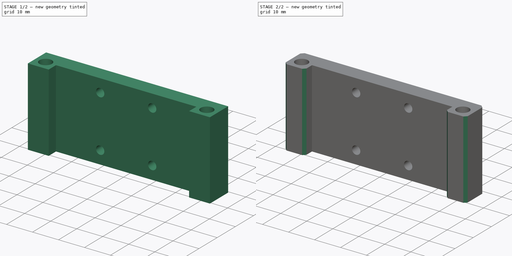
[diagram: build sequence overview — one tinted view per stage of 2, left to right]
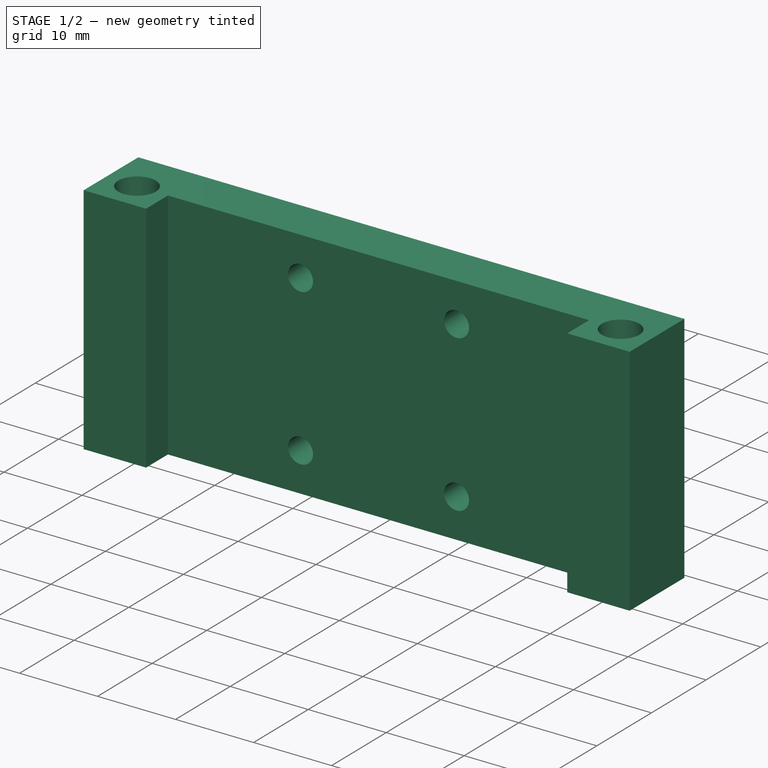
[diagram: stage 1 of 2 — iso view after this stage's code; geometry added in this stage tinted green]
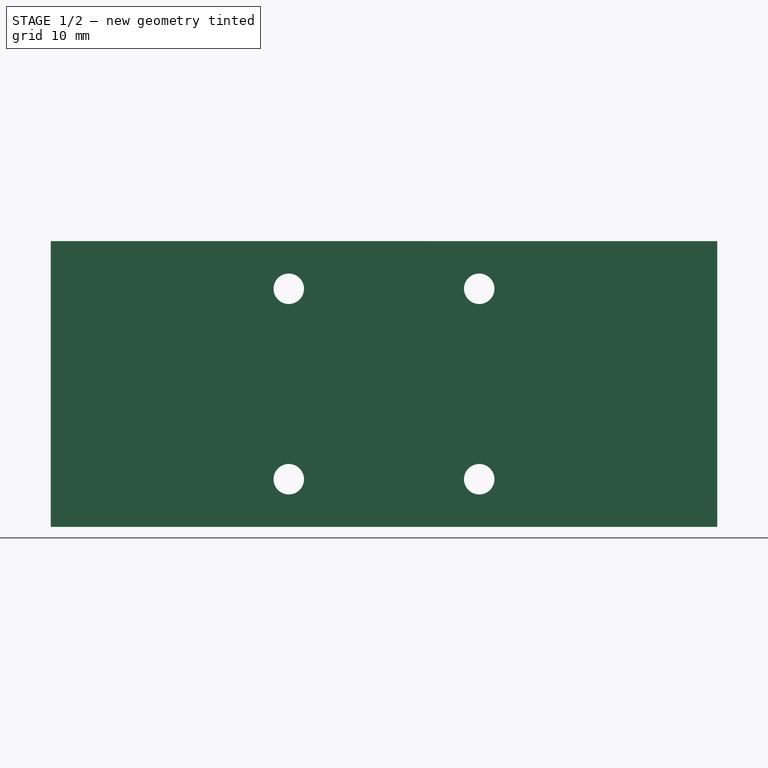
[diagram: stage 1 of 2 — front view after this stage's code; geometry added in this stage tinted green]
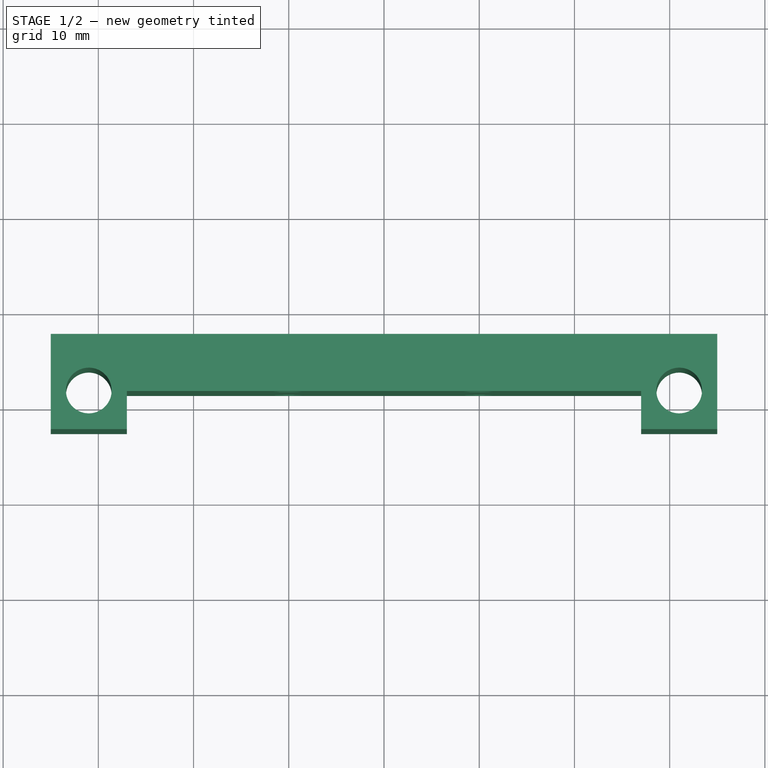
[diagram: stage 1 of 2 — top view after this stage's code; geometry added in this stage tinted green]
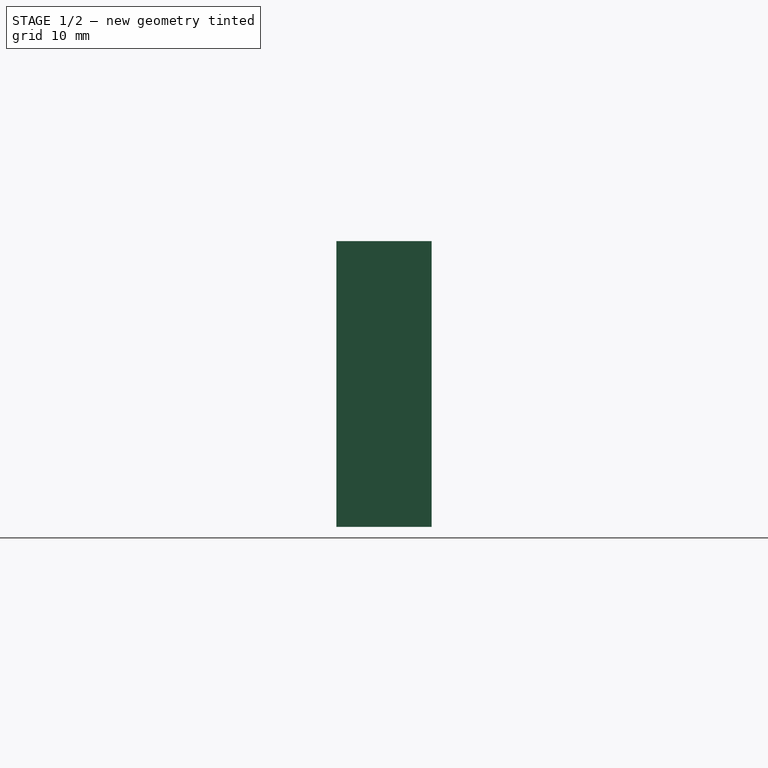
[diagram: stage 1 of 2 — right view after this stage's code; geometry added in this stage tinted green]
FCSTD DOCUMENT  (FreeCAD 0.20R29177 (Git))
Label: x-gantry-block-mount
License: All rights reserved
LicenseURL: http://en.wikipedia.org/wiki/All_rights_reserved
objects: Sketcher::SketchObject×2, PartDesign::Pad×1, PartDesign::Pocket×1, PartDesign::Chamfer×1, PartDesign::Body×1
note: 9 computed .brp shape members not serialized (recipe doc carries the construction recipe); baked Part::Feature solids carry a one-line shape summary decoded from their .brp

FEATURE [Sketcher::SketchObject] Sketch024
  FullyConstrained = false
  MapMode = 5
  Support = -> [XY_Plane001]
  sketch-geometry (10):
    g0: Circle CenterX=-31 CenterY=41.5 CenterZ=0 NormalX=0 NormalY=0 NormalZ=1 AngleXU=0 Radius=2.4
    g1: Circle CenterX=31 CenterY=41.5 CenterZ=0 NormalX=0 NormalY=0 NormalZ=1 AngleXU=0 Radius=2.4
    g2: LineSegment StartX=-35 StartY=47.4445 StartZ=0 EndX=35 EndY=47.4445 EndZ=0
    g3: LineSegment StartX=35 StartY=47.4445 StartZ=0 EndX=35 EndY=37.4445 EndZ=0
    g4: LineSegment StartX=35 StartY=37.4445 StartZ=0 EndX=27 EndY=37.4445 EndZ=0
    g5: LineSegment StartX=-35 StartY=37.4445 StartZ=0 EndX=-35 EndY=47.4445 EndZ=0
    g6: LineSegment StartX=27 StartY=37.4445 StartZ=0 EndX=27 EndY=41.4445 EndZ=0
    g7: LineSegment StartX=27 StartY=41.4445 StartZ=0 EndX=-27 EndY=41.4445 EndZ=0
    g8: LineSegment StartX=-27 StartY=41.4445 StartZ=0 EndX=-27 EndY=37.4445 EndZ=0
    g9: LineSegment StartX=-27 StartY=37.4445 StartZ=0 EndX=-35 EndY=37.4445 EndZ=0
  constraints (26):
    c: DistanceX(g0,g1) = 62
    c: DistanceY(g-1,g0) = 41.5
    c: Diameter(g0) = 4.8
    c: Symmetric(g1,g0,g-2)
    c: Equal(g1,g0)
    c: Coincident(g2,g3)
    c: Coincident(g3,g4)
    c: Coincident(g9,g5)
    c: Coincident(g5,g2)
    c: Horizontal(g4)
    c: Vertical(g3)
    c: Vertical(g5)
    c: Coincident(g6,g7)
    c: Coincident(g7,g8)
    c: Vertical(g6)
    c: Vertical(g8)
    c: Symmetric(g2,g2,g-2)
    c: DistanceX(g2,g2) = 70
    c: Symmetric(g7,g6,g-2)
    c: Coincident(g9,g8)
    c: Coincident(g4,g6)
    c: Horizontal(g9)
    c: Equal(g6,g8)
    c: DistanceX(g7,g7) = 54
    c: DistanceY(g6,g2) = 6
    c: DistanceY(g8,g8) = 4
FEATURE [PartDesign::Pad] Pad005
  Direction = (0,0,1)
  Length = 30
  Length2 = 10
  Profile = -> Sketch024
  ReferenceAxis = -> Sketch024 [N_Axis]
  Reversed = true
  Type = 0
FEATURE [Sketcher::SketchObject] Sketch025
  FullyConstrained = true
  MapMode = 5
  Placement = pos=(0,0,0) rot=(1,0,0;1.5708rad)
  Support = -> [XZ_Plane001]
  sketch-geometry (9):
    g0: LineSegment StartX=-10 StartY=-5 StartZ=0 EndX=10 EndY=-5 EndZ=0
    g1: LineSegment StartX=10 StartY=-5 StartZ=0 EndX=10 EndY=-25 EndZ=0
    g2: LineSegment StartX=10 StartY=-25 StartZ=0 EndX=-10 EndY=-25 EndZ=0
    g3: LineSegment StartX=-10 StartY=-25 StartZ=0 EndX=-10 EndY=-5 EndZ=0
    g4: LineSegment StartX=-10 StartY=-15 StartZ=0 EndX=10 EndY=-15 EndZ=0
    g5: Circle CenterX=-10 CenterY=-5 CenterZ=0 NormalX=0 NormalY=0 NormalZ=1 AngleXU=0 Radius=1.6
    g6: Circle CenterX=10 CenterY=-5 CenterZ=0 NormalX=0 NormalY=0 NormalZ=1 AngleXU=0 Radius=1.6
    g7: Circle CenterX=10 CenterY=-25 CenterZ=0 NormalX=0 NormalY=0 NormalZ=1 AngleXU=0 Radius=1.6
    g8: Circle CenterX=-10 CenterY=-25 CenterZ=0 NormalX=0 NormalY=0 NormalZ=1 AngleXU=0 Radius=1.6
  constraints (22):
    c: Coincident(g0,g1)
    c: Coincident(g1,g2)
    c: Coincident(g2,g3)
    c: Coincident(g3,g0)
    c: Horizontal(g0)
    c: Vertical(g1)
    c: Vertical(g3)
    c: DistanceY(g1,g1) = 20
    c: DistanceX(g2,g2) = 20
    c: Symmetric(g1,g2,g-2)
    c: PointOnObject(g4,g3)
    c: PointOnObject(g4,g1)
    c: Symmetric(g2,g0,g4)
    c: DistanceY(g4,g-1) = 15
    c: Coincident(g5,g0)
    c: Coincident(g6,g0)
    c: Coincident(g7,g1)
    c: Coincident(g8,g2)
    c: Equal(g8,g7)
    c: Equal(g7,g6)
    c: Equal(g6,g5)
    c: Diameter(g5) = 3.2
FEATURE [PartDesign::Pocket] Pocket015
  BaseFeature = -> Pad005
  Direction = (0,1,2e-16)
  Length = 5
  Length2 = 5
  Profile = -> Sketch025
  ReferenceAxis = -> Sketch025 [N_Axis]
  Type = 1
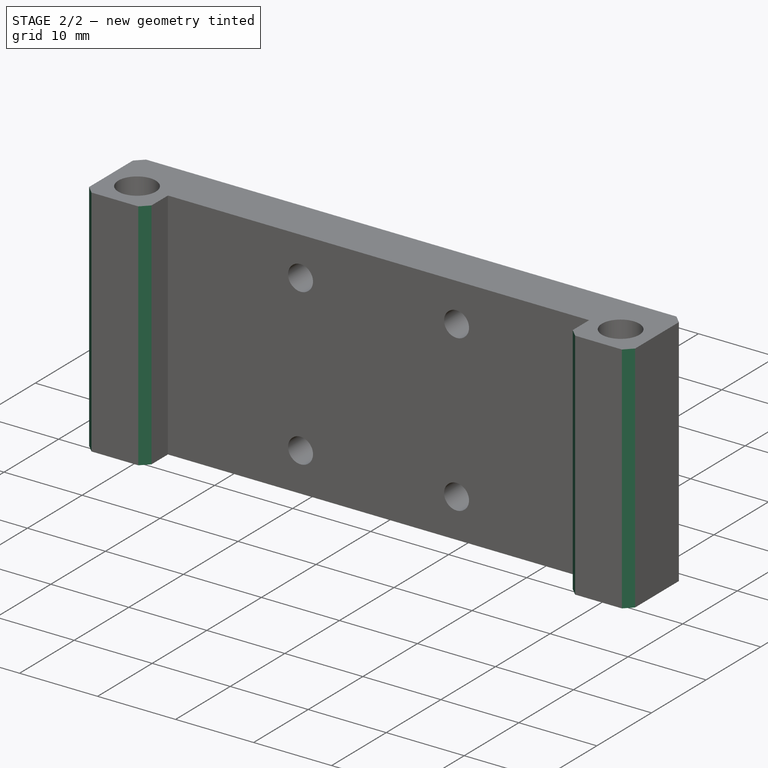
[diagram: stage 2 of 2 — iso view after this stage's code; geometry added in this stage tinted green]
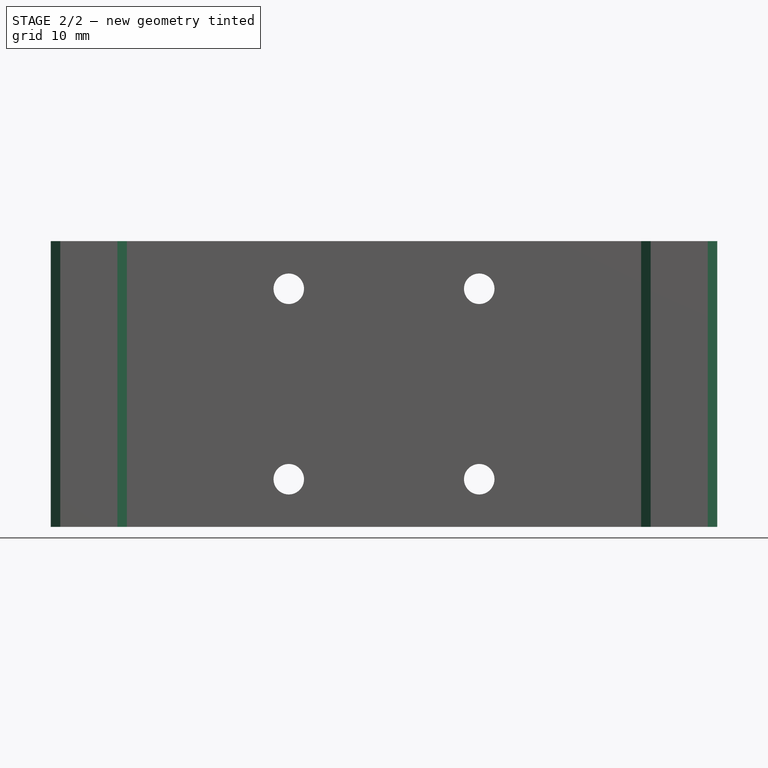
[diagram: stage 2 of 2 — front view after this stage's code; geometry added in this stage tinted green]
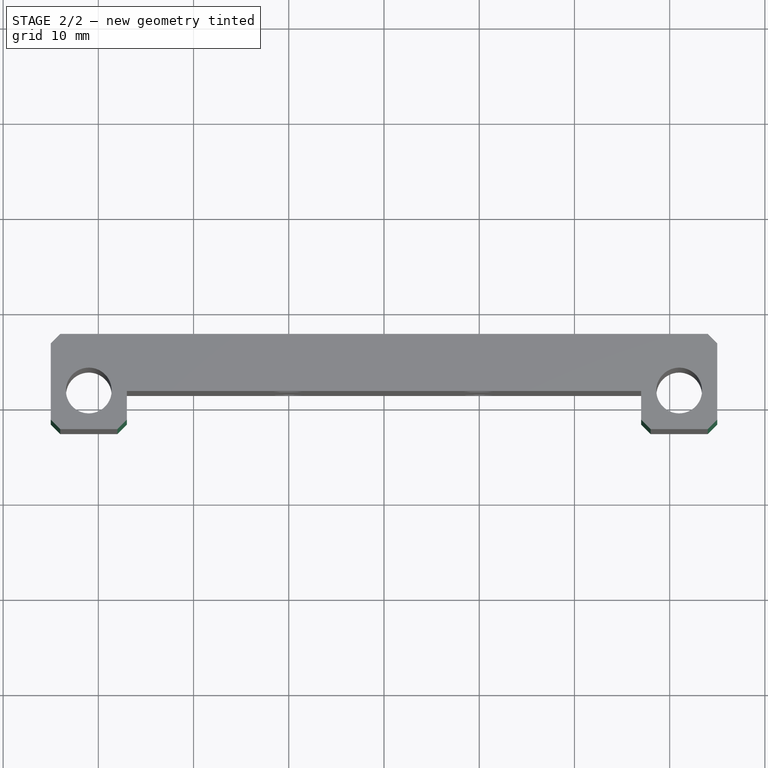
[diagram: stage 2 of 2 — top view after this stage's code; geometry added in this stage tinted green]
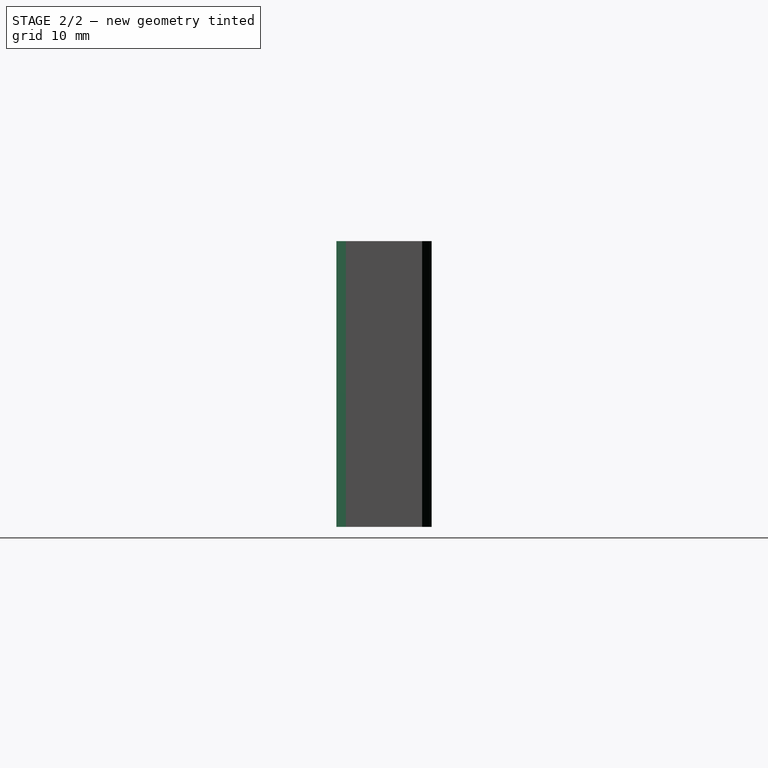
[diagram: stage 2 of 2 — right view after this stage's code; geometry added in this stage tinted green]
FEATURE [PartDesign::Chamfer] Chamfer004
  Angle = 45
  Base = -> Pocket015 [Edge1,Edge9,Edge4,Edge28,Edge38,Edge37]
  BaseFeature = -> Pocket015
  ChamferType = 0
  FlipDirection = false
  Size = 1
  Size2 = 1
  SupportTransform = false
  UseAllEdges = false
FEATURE [PartDesign::Body] Body001
  Group = -> [Sketch024,Pad005,Sketch025,Pocket015,Chamfer004]
  Origin = -> Origin001
  Tip = -> Chamfer004
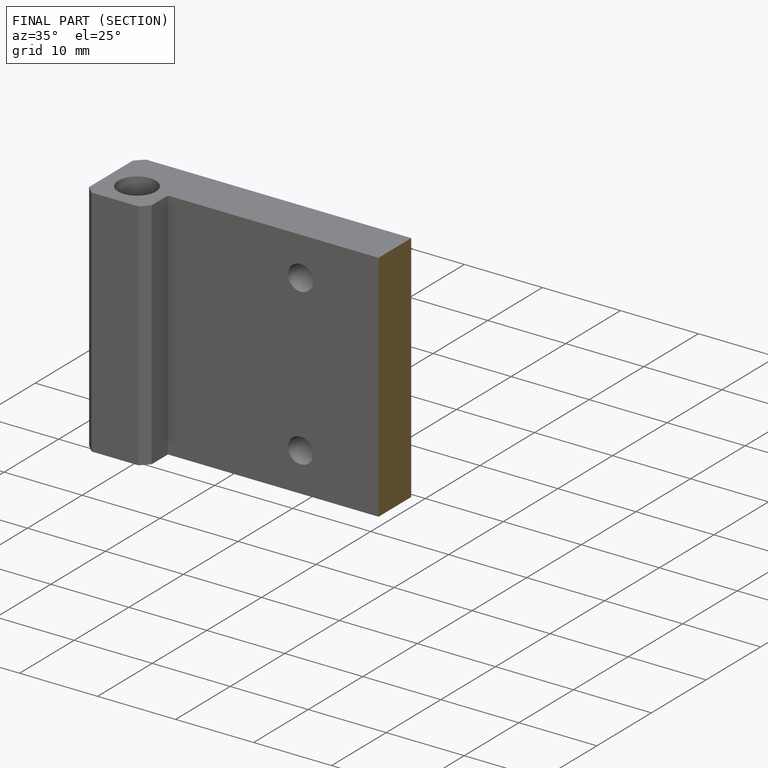
[diagram: finished part — half-section view (interior)]
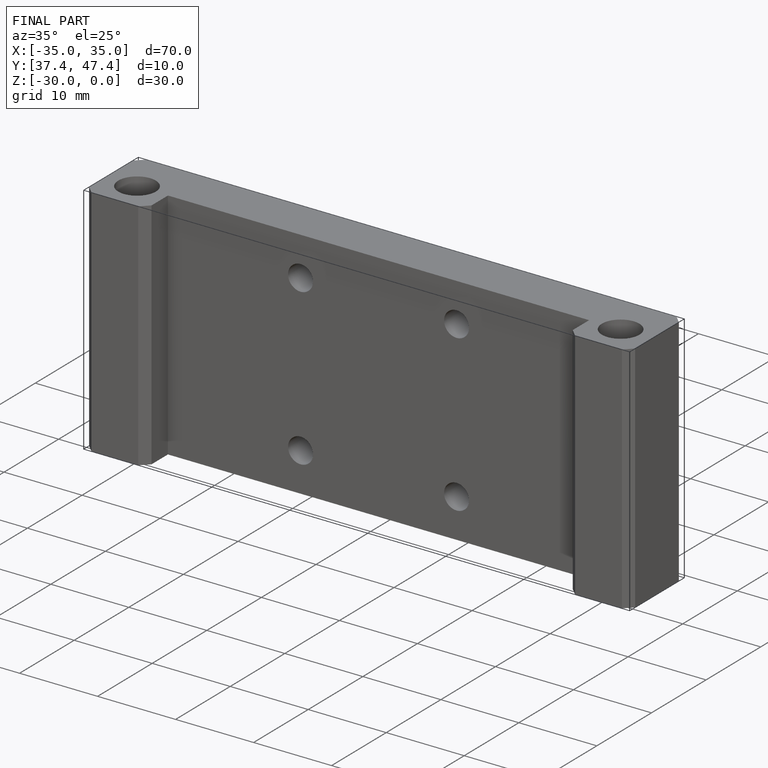
[diagram: finished part — iso view with bounding-box wireframe]
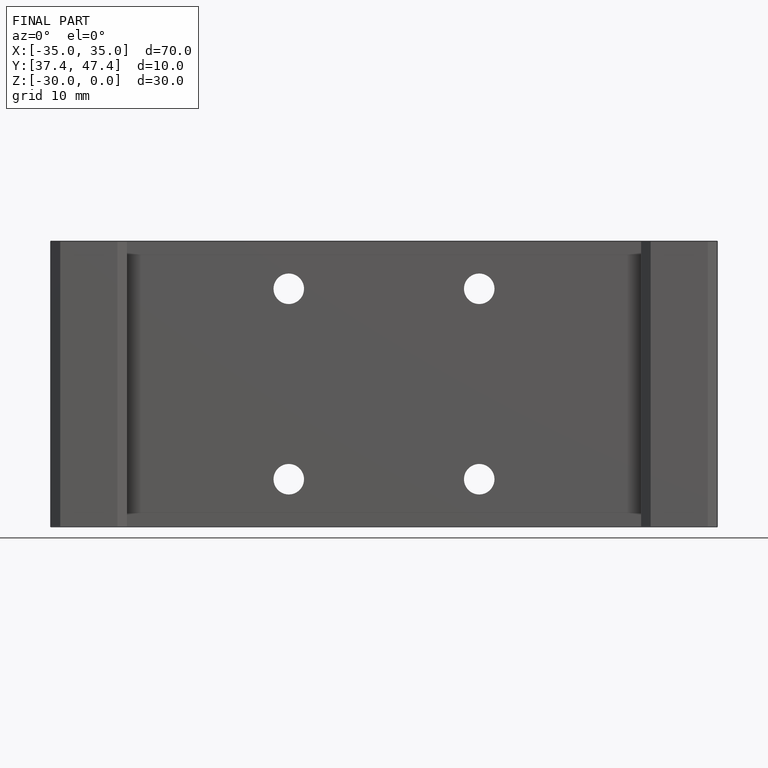
[diagram: finished part — front view with bounding-box wireframe]
